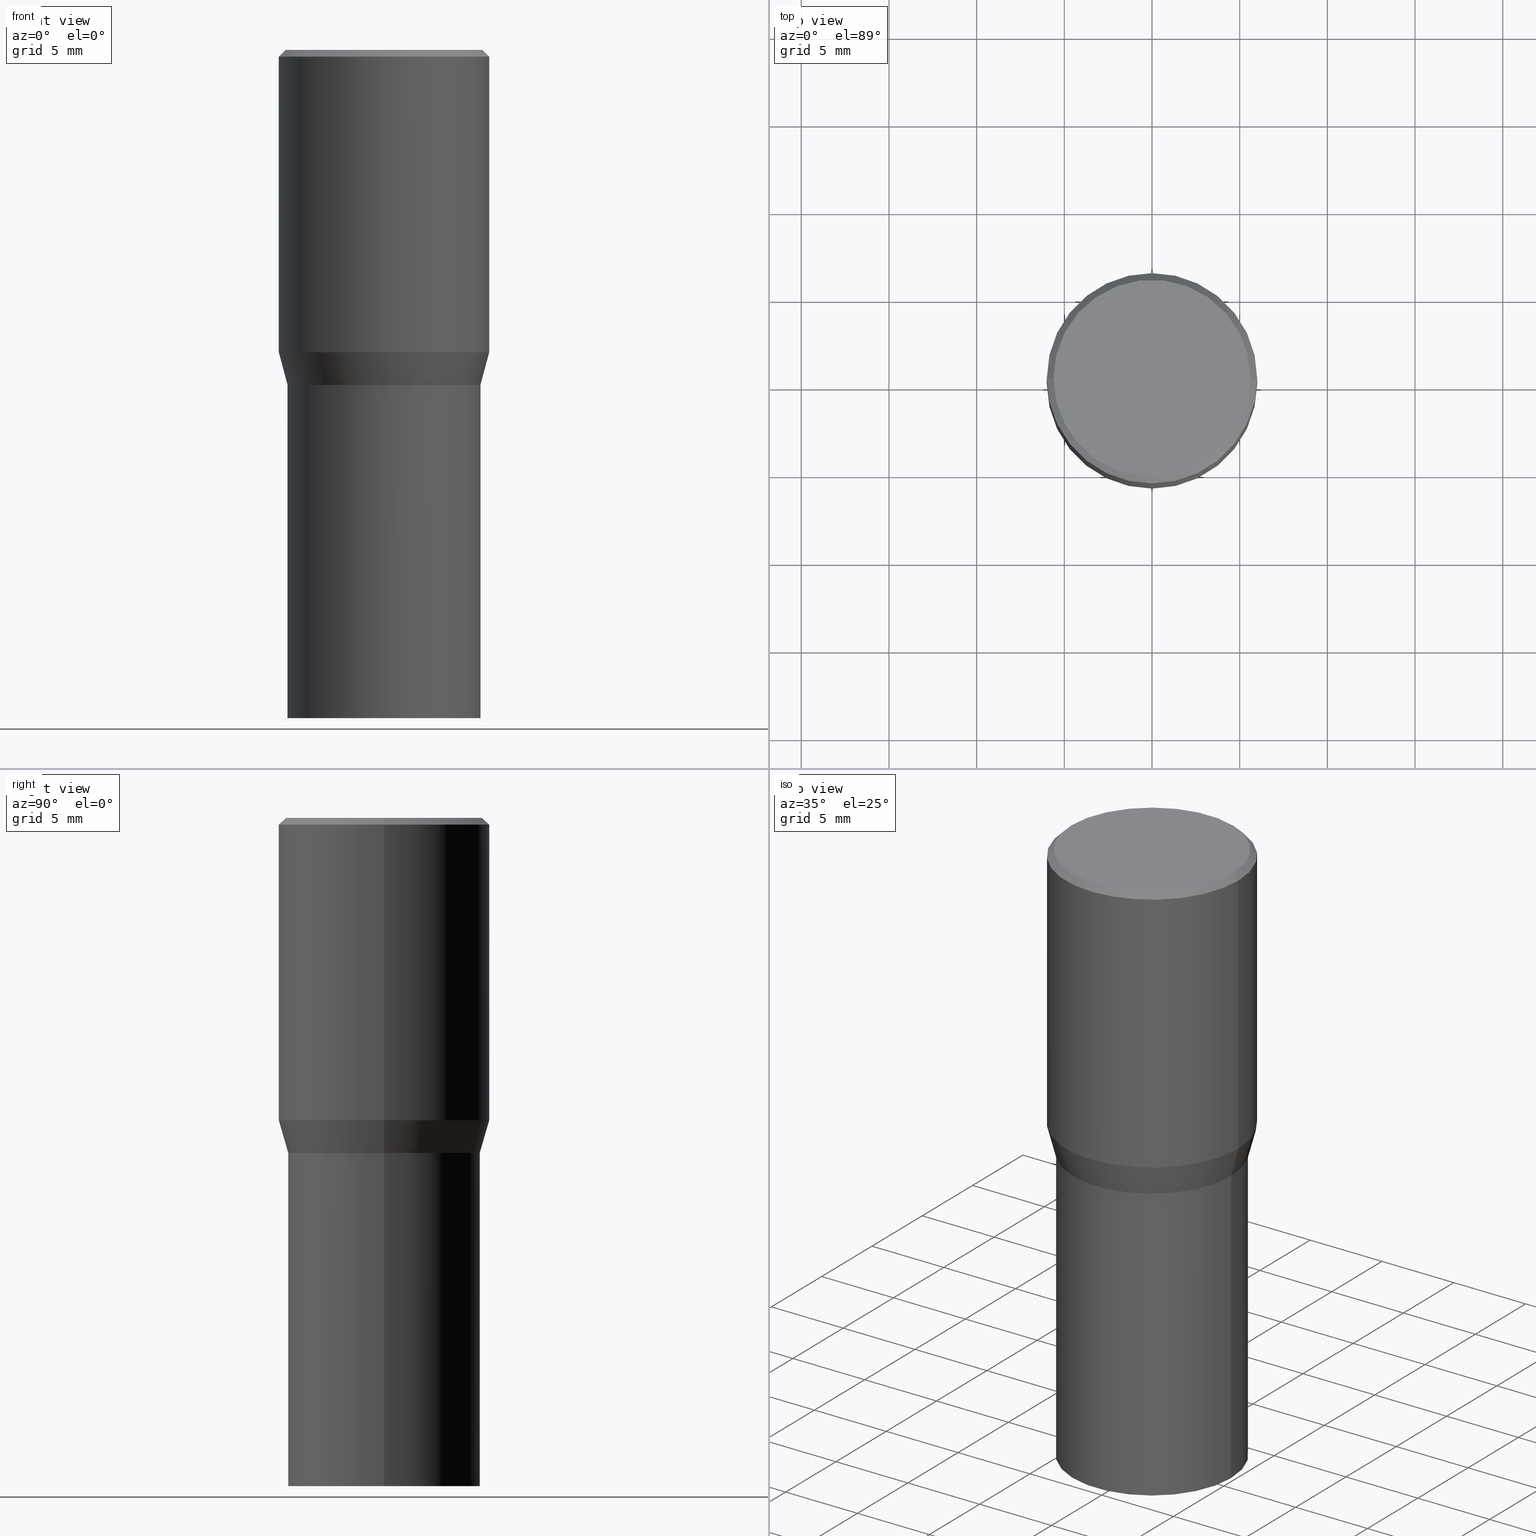
[diagram: canonical four-view strip — front | top / right | iso, engineering-drawing reading convention]
A machine part, canonical four-view strip (front | top / right | iso — engineering-drawing reading convention). The complete STEP part file that produces these views, byte-faithful:
ISO-10303-21;
HEADER;
FILE_DESCRIPTION (( 'STEP AP203' ),
    '1' );
FILE_NAME ('41661.STEP',
    '2024-03-12T19:16:22',
    ( '' ),
    ( '' ),
    'SwSTEP 2.0',
    'SolidWorks 2023',
    '' );
FILE_SCHEMA (( 'CONFIG_CONTROL_DESIGN' ));
ENDSEC;

DATA;
#1 = CARTESIAN_POINT ( 'NONE',  ( 0.2165500000000000203, -6.749382576117678999E-15, -1.500000000000000222 ) ) ;
#2 = CARTESIAN_POINT ( 'NONE',  ( -0.2165500000000001035, 1.538680294288497688E-15, -1.065195393794700483E-29 ) ) ;
#3 = FACE_OUTER_BOUND ( 'NONE', #418, .T. ) ;
#4 = ORIENTED_EDGE ( 'NONE', *, *, #46, .F. ) ;
#5 = CARTESIAN_POINT ( 'NONE',  ( -1.149724336312568549E-45, 1.641501643732376111E-31, 4.701447564592355584E-17 ) ) ;
#6 = EDGE_CURVE ( 'NONE', #255, #318, #280, .T. ) ;
#7 = EDGE_CURVE ( 'NONE', #178, #384, #277, .T. ) ;
#8 = CARTESIAN_POINT ( 'NONE',  ( 0.2361999999999999933, -1.649375784469496131E-15, 1.151752954443000088E-29 ) ) ;
#9 = DIRECTION ( 'NONE',  ( -2.445468806185136877E-29, 3.491481338843145188E-15, 1.000000000000000000 ) ) ;
#10 = CARTESIAN_POINT ( 'NONE',  ( -0.2361999999999999933, -6.912449449524502887E-16, -0.6786652016312719748 ) ) ;
#11 = LINE ( 'NONE', #214, #32 ) ;
#12 = CARTESIAN_POINT ( 'NONE',  ( -0.2165500000000000203, -2.392727693248884740E-15, -1.500000000000000222 ) ) ;
#13 = DIRECTION ( 'NONE',  ( 1.000000000000000000, -6.982962677686267499E-15, 4.877828720335458505E-29 ) ) ;
#14 = EDGE_CURVE ( 'NONE', #27, #114, #110, .T. ) ;
#15 = DIRECTION ( 'NONE',  ( -2.445468806185136597E-29, 3.491481338843145583E-15, 1.000000000000000000 ) ) ;
#16 = CONICAL_SURFACE ( 'NONE', #372, 0.2165500000000000203, 0.2617993877991505736 ) ;
#17 = CARTESIAN_POINT ( 'NONE',  ( -0.2160500000000000198, -1.087817159026237112E-15, -0.7519999999999998908 ) ) ;
#18 = DIRECTION ( 'NONE',  ( -0.7071067811865459074, 2.468850131082239706E-15, -0.7071067811865492381 ) ) ;
#19 = CC_DESIGN_DATE_AND_TIME_ASSIGNMENT ( #168, #205, ( #352 ) ) ;
#20 = LENGTH_MEASURE_WITH_UNIT ( LENGTH_MEASURE( 0.02539999999999999897 ), #182 );
#21 = AXIS2_PLACEMENT_3D ( 'NONE', #202, #49, #395 ) ;
#22 = CALENDAR_DATE ( 2024, 12, 3 ) ;
#23 = EDGE_LOOP ( 'NONE', ( #97, #36, #346, #224 ) ) ;
#24 = EDGE_CURVE ( 'NONE', #27, #309, #285, .T. ) ;
#25 = CIRCLE ( 'NONE', #200, 0.2361999999999999933 ) ;
#26 = DIRECTION ( 'NONE',  ( 1.000000000000000000, -6.982962677686266711E-15, 0.000000000000000000 ) ) ;
#27 = VERTEX_POINT ( 'NONE', #150 ) ;
#28 = EDGE_CURVE ( 'NONE', #34, #316, #172, .T. ) ;
#29 = LINE ( 'NONE', #8, #453 ) ;
#30 = EDGE_CURVE ( 'NONE', #252, #316, #72, .T. ) ;
#31 = ORIENTED_EDGE ( 'NONE', *, *, #327, .T. ) ;
#32 = VECTOR ( 'NONE', #143, 39.37007874015748143 ) ;
#33 = DIRECTION ( 'NONE',  ( -2.445468806185136597E-29, 3.491481338843145583E-15, 1.000000000000000000 ) ) ;
#34 = VERTEX_POINT ( 'NONE', #349 ) ;
#35 = CARTESIAN_POINT ( 'NONE',  ( 0.2361999999999999933, -1.701748004552143407E-15, -0.01499999999999999944 ) ) ;
#36 = ORIENTED_EDGE ( 'NONE', *, *, #432, .T. ) ;
#37 = ADVANCED_FACE ( 'NONE', ( #282 ), #90, .T. ) ;
#38 = LINE ( 'NONE', #256, #333 ) ;
#39 = ORIENTED_EDGE ( 'NONE', *, *, #75, .F. ) ;
#40 = DIRECTION ( 'NONE',  ( -2.445468806185136597E-29, 3.491481338843145583E-15, 1.000000000000000000 ) ) ;
#41 = VECTOR ( 'NONE', #462, 39.37007874015748143 ) ;
#42 = AXIS2_PLACEMENT_3D ( 'NONE', #77, #65, #153 ) ;
#43 = CARTESIAN_POINT ( 'NONE',  ( 1.838992542251222813E-29, -2.625593966810045497E-15, -0.7520000000000001128 ) ) ;
#44 = CARTESIAN_POINT ( 'NONE',  ( 1.838992542251222532E-29, -2.625593966810045103E-15, -0.7519999999999998908 ) ) ;
#45 = COORDINATED_UNIVERSAL_TIME_OFFSET ( 5, 0, .BEHIND. ) ;
#46 = EDGE_CURVE ( 'NONE', #27, #255, #98, .T. ) ;
#47 = CALENDAR_DATE ( 2024, 12, 3 ) ;
#48 = DIRECTION ( 'NONE',  ( 1.000000000000000000, -6.982962677686266711E-15, 0.000000000000000000 ) ) ;
#49 = DIRECTION ( 'NONE',  ( -2.445468806185136597E-29, 3.491481338843145583E-15, 1.000000000000000000 ) ) ;
#50 = COORDINATED_UNIVERSAL_TIME_OFFSET ( 5, 0, .BEHIND. ) ;
#51 = DIRECTION ( 'NONE',  ( -1.000000000000000000, 6.982962677686265922E-15, -4.876176775795935793E-29 ) ) ;
#52 = CC_DESIGN_PERSON_AND_ORGANIZATION_ASSIGNMENT ( #115, #464, ( #271 ) ) ;
#53 = VECTOR ( 'NONE', #57, 39.37007874015748143 ) ;
#54 = LOCAL_TIME ( 15, 16, 22.00000000000000000, #45 ) ;
#55 = APPLICATION_PROTOCOL_DEFINITION ( 'international standard', 'config_control_design', 1994, #91 ) ;
#56 = APPROVAL_DATE_TIME ( #378, #339 ) ;
#57 = DIRECTION ( 'NONE',  ( -0.7071067811867647324, 7.493145998871139866E-15, 0.7071067811863303021 ) ) ;
#58 = EDGE_CURVE ( 'NONE', #255, #27, #270, .T. ) ;
#59 = ADVANCED_FACE ( 'NONE', ( #359 ), #236, .T. ) ;
#60 = AXIS2_PLACEMENT_3D ( 'NONE', #423, #109, #389 ) ;
#61 = LINE ( 'NONE', #421, #53 ) ;
#62 = APPROVAL_DATE_TIME ( #140, #301 ) ;
#63 = APPROVAL_DATE_TIME ( #415, #324 ) ;
#64 = ORIENTED_EDGE ( 'NONE', *, *, #6, .T. ) ;
#65 = DIRECTION ( 'NONE',  ( 2.445468806185136597E-29, -3.491481338843145583E-15, -1.000000000000000000 ) ) ;
#66 = CARTESIAN_POINT ( 'NONE',  ( 0.000000000000000000, 0.000000000000000000, 0.000000000000000000 ) ) ;
#67 = EDGE_CURVE ( 'NONE', #180, #34, #11, .T. ) ;
#68 = ORIENTED_EDGE ( 'NONE', *, *, #99, .T. ) ;
#69 = PERSON_AND_ORGANIZATION ( #317, #308 ) ;
#70 = FACE_OUTER_BOUND ( 'NONE', #225, .T. ) ;
#71 = DIRECTION ( 'NONE',  ( -2.445468806185136597E-29, 3.491481338843145583E-15, 1.000000000000000000 ) ) ;
#72 = LINE ( 'NONE', #323, #41 ) ;
#73 = CARTESIAN_POINT ( 'NONE',  ( 0.2165500000000001035, -1.512160567852961809E-15, 1.055936080798610456E-29 ) ) ;
#74 = AXIS2_PLACEMENT_3D ( 'NONE', #407, #96, #141 ) ;
#75 = EDGE_CURVE ( 'NONE', #384, #114, #350, .T. ) ;
#76 = ORIENTED_EDGE ( 'NONE', *, *, #370, .F. ) ;
#77 = CARTESIAN_POINT ( 'NONE',  ( 3.668203209277705088E-31, -5.237222008264718399E-17, -0.01499999999999999944 ) ) ;
#78 = DIRECTION ( 'NONE',  ( -2.445468806185136597E-29, 3.491481338843145583E-15, 1.000000000000000000 ) ) ;
#79 = ORIENTED_EDGE ( 'NONE', *, *, #441, .F. ) ;
#80 = DIRECTION ( 'NONE',  ( 1.000000000000000000, -6.982962677686265922E-15, 4.876176775795935793E-29 ) ) ;
#81 = DIRECTION ( 'NONE',  ( -2.445468806185136597E-29, 3.491481338843145583E-15, 1.000000000000000000 ) ) ;
#82 = CIRCLE ( 'NONE', #322, 0.2361999999999999933 ) ;
#83 = LOCAL_TIME ( 15, 16, 22.00000000000000000, #268 ) ;
#84 = CARTESIAN_POINT ( 'NONE',  ( 1.838992542251222532E-29, -2.625593966810045103E-15, -0.7519999999999998908 ) ) ;
#85 = DIRECTION ( 'NONE',  ( 1.000000000000000000, -6.982962677686266711E-15, 0.000000000000000000 ) ) ;
#86 = DIRECTION ( 'NONE',  ( -2.445468806185136597E-29, 3.491481338843145583E-15, 1.000000000000000000 ) ) ;
#87 = CARTESIAN_POINT ( 'NONE',  ( -0.2165500000000000203, 1.538680294288497096E-15, -1.065195393794699923E-29 ) ) ;
#88 = DIRECTION ( 'NONE',  ( -2.445468806185136597E-29, 3.491481338843145583E-15, 1.000000000000000000 ) ) ;
#89 = CARTESIAN_POINT ( 'NONE',  ( -0.2361999999999999933, 1.597003564386848854E-15, -0.01499999999999999944 ) ) ;
#90 = CONICAL_SURFACE ( 'NONE', #286, 0.2165500000000000203, 0.2617993877991505736 ) ;
#91 = APPLICATION_CONTEXT ( 'configuration controlled 3d designs of mechanical parts and assemblies' ) ;
#92 = ADVANCED_FACE ( 'NONE', ( #122 ), #302, .T. ) ;
#93 = ADVANCED_FACE ( 'NONE', ( #136 ), #445, .T. ) ;
#94 = DIRECTION ( 'NONE',  ( 0.000000000000000000, 0.000000000000000000, 1.000000000000000000 ) ) ;
#95 = FACE_OUTER_BOUND ( 'NONE', #311, .T. ) ;
#96 = DIRECTION ( 'NONE',  ( -2.445468806185136597E-29, 3.491481338843145583E-15, 1.000000000000000000 ) ) ;
#97 = ORIENTED_EDGE ( 'NONE', *, *, #273, .F. ) ;
#98 = CIRCLE ( 'NONE', #227, 0.2165500000000000203 ) ;
#99 = EDGE_CURVE ( 'NONE', #412, #274, #278, .T. ) ;
#100 = ORIENTED_EDGE ( 'NONE', *, *, #24, .F. ) ;
#101 = UNCERTAINTY_MEASURE_WITH_UNIT (LENGTH_MEASURE( 1.000000000000000082E-05 ), #448, 'distance_accuracy_value', 'NONE');
#102 = DIRECTION ( 'NONE',  ( 1.000000000000000000, -6.982962677686266711E-15, 0.000000000000000000 ) ) ;
#103 = EDGE_LOOP ( 'NONE', ( #68, #249, #142, #351 ) ) ;
#104 = CALENDAR_DATE ( 2024, 12, 3 ) ;
#105 = AXIS2_PLACEMENT_3D ( 'NONE', #400, #338, #230 ) ;
#106 = ORIENTED_EDGE ( 'NONE', *, *, #379, .T. ) ;
#107 = AXIS2_PLACEMENT_3D ( 'NONE', #43, #297, #166 ) ;
#108 = DIRECTION ( 'NONE',  ( -2.445468806185136597E-29, 3.491481338843145583E-15, 1.000000000000000000 ) ) ;
#109 = DIRECTION ( 'NONE',  ( -2.445468806185136597E-29, 3.491481338843145583E-15, 1.000000000000000000 ) ) ;
#110 = LINE ( 'NONE', #73, #429 ) ;
#111 = DIRECTION ( 'NONE',  ( 1.000000000000000000, -6.982962677686266711E-15, 4.876176775795935793E-29 ) ) ;
#112 = ORIENTED_EDGE ( 'NONE', *, *, #310, .F. ) ;
#113 = CIRCLE ( 'NONE', #119, 0.2165500000000002145 ) ;
#114 = VERTEX_POINT ( 'NONE', #226 ) ;
#115 = PERSON_AND_ORGANIZATION ( #317, #308 ) ;
#116 = SECURITY_CLASSIFICATION_LEVEL ( 'unclassified' ) ;
#117 = CARTESIAN_POINT ( 'NONE',  ( 1.837769807848130011E-29, -2.623848226140623599E-15, -0.7515000000000000568 ) ) ;
#118 = FACE_OUTER_BOUND ( 'NONE', #137, .T. ) ;
#119 = AXIS2_PLACEMENT_3D ( 'NONE', #366, #15, #232 ) ;
#120 = DIRECTION ( 'NONE',  ( -2.445468806185136597E-29, 3.491481338843145583E-15, 1.000000000000000000 ) ) ;
#121 = PLANE ( 'NONE',  #194 ) ;
#122 = FACE_OUTER_BOUND ( 'NONE', #23, .T. ) ;
#123 = EDGE_CURVE ( 'NONE', #180, #309, #25, .T. ) ;
#124 = DIRECTION ( 'NONE',  ( -2.445468806185136597E-29, 3.491481338843145583E-15, 1.000000000000000000 ) ) ;
#125 = FACE_OUTER_BOUND ( 'NONE', #422, .T. ) ;
#126 = CALENDAR_DATE ( 2024, 12, 3 ) ;
#127 = CLOSED_SHELL ( 'NONE', ( #437, #281, #138, #337, #37, #264, #233, #59, #231, #240, #188, #355 ) ) ;
#128 = CIRCLE ( 'NONE', #410, 0.2212000000000000077 ) ;
#129 = CC_DESIGN_APPROVAL ( #301, ( #352 ) ) ;
#130 = VERTEX_POINT ( 'NONE', #436 ) ;
#131 = PRODUCT_DEFINITION_SHAPE ( 'NONE', 'NONE',  #352 ) ;
#132 = CARTESIAN_POINT ( 'NONE',  ( -0.2165500000000000203, -2.392727693248884740E-15, -0.7520000000000001128 ) ) ;
#133 = AXIS2_PLACEMENT_3D ( 'NONE', #300, #88, #258 ) ;
#134 = APPROVAL_PERSON_ORGANIZATION ( #187, #324, #203 ) ;
#135 = ORIENTED_EDGE ( 'NONE', *, *, #7, .T. ) ;
#136 = FACE_OUTER_BOUND ( 'NONE', #103, .T. ) ;
#137 = EDGE_LOOP ( 'NONE', ( #408, #213, #170, #39 ) ) ;
#138 = ADVANCED_FACE ( 'NONE', ( #303 ), #461, .T. ) ;
#139 = ORIENTED_EDGE ( 'NONE', *, *, #447, .T. ) ;
#140 = DATE_AND_TIME ( #126, #212 ) ;
#141 = DIRECTION ( 'NONE',  ( 1.000000000000000000, -6.982962677686266711E-15, 4.876176775795935793E-29 ) ) ;
#142 = ORIENTED_EDGE ( 'NONE', *, *, #327, .F. ) ;
#143 = DIRECTION ( 'NONE',  ( -2.445468806185136877E-29, 3.491481338843145188E-15, 1.000000000000000000 ) ) ;
#144 = DIRECTION ( 'NONE',  ( 1.000000000000000000, -6.982962677686266711E-15, 0.000000000000000000 ) ) ;
#145 = PERSON_AND_ORGANIZATION_ROLE ( 'classification_officer' ) ;
#146 = DIRECTION ( 'NONE',  ( -2.445468806185136597E-29, 3.491481338843145583E-15, 1.000000000000000000 ) ) ;
#147 = CYLINDRICAL_SURFACE ( 'NONE', #380, 0.2165500000000001035 ) ;
#148 = CARTESIAN_POINT ( 'NONE',  ( 1.838992542251222532E-29, -2.625593966810045103E-15, -0.7519999999999998908 ) ) ;
#149 = CARTESIAN_POINT ( 'NONE',  ( 3.576687321579069994E-29, -5.368277968210015545E-15, -1.500000000000000222 ) ) ;
#150 = CARTESIAN_POINT ( 'NONE',  ( 0.2165500000000000203, -4.137754534663007109E-15, -0.7520000000000001128 ) ) ;
#151 = ORIENTED_EDGE ( 'NONE', *, *, #58, .T. ) ;
#152 = CONICAL_SURFACE ( 'NONE', #174, 0.2160500000000000198, 0.7853981633977554777 ) ;
#153 = DIRECTION ( 'NONE',  ( -1.000000000000000000, 6.982962677686266711E-15, 0.000000000000000000 ) ) ;
#154 = DIRECTION ( 'NONE',  ( -2.445468806185136597E-29, 3.491481338843145583E-15, 1.000000000000000000 ) ) ;
#155 = APPROVAL_PERSON_ORGANIZATION ( #208, #301, #245 ) ;
#156 = CARTESIAN_POINT ( 'NONE',  ( 0.2165500000000000203, -4.137754534663007109E-15, -0.7520000000000001128 ) ) ;
#157 = DIRECTION ( 'NONE',  ( 2.438088387897960049E-29, -3.491481338843145188E-15, -1.000000000000000000 ) ) ;
#158 = CARTESIAN_POINT ( 'NONE',  ( 1.659654580432621677E-29, -2.369546886817807077E-15, -0.6786652016312719748 ) ) ;
#159 = DIRECTION ( 'NONE',  ( 0.2588190451025218497, 1.565188264969618221E-15, 0.9659258262890679791 ) ) ;
#160 = CARTESIAN_POINT ( 'NONE',  ( -0.2165500000000000203, -1.086913672521548598E-15, -0.7520000000000001128 ) ) ;
#161 = CARTESIAN_POINT ( 'NONE',  ( 3.668203209277705088E-31, -5.237222008264718399E-17, -0.01499999999999999944 ) ) ;
#162 = CARTESIAN_POINT ( 'NONE',  ( 0.000000000000000000, 0.000000000000000000, 0.000000000000000000 ) ) ;
#163 = FACE_OUTER_BOUND ( 'NONE', #192, .T. ) ;
#164 = DIRECTION ( 'NONE',  ( -2.445468806185136597E-29, 3.491481338843145583E-15, 1.000000000000000000 ) ) ;
#165 = AXIS2_PLACEMENT_3D ( 'NONE', #149, #364, #332 ) ;
#166 = DIRECTION ( 'NONE',  ( 1.000000000000000000, -6.982962677686266711E-15, 0.000000000000000000 ) ) ;
#167 = EDGE_CURVE ( 'NONE', #318, #114, #113, .T. ) ;
#168 = DATE_AND_TIME ( #22, #287 ) ;
#169 = CC_DESIGN_DATE_AND_TIME_ASSIGNMENT ( #284, #358, ( #430 ) ) ;
#170 = ORIENTED_EDGE ( 'NONE', *, *, #199, .F. ) ;
#171 = CARTESIAN_POINT ( 'NONE',  ( -1.149724336312568549E-45, 1.641501643732376111E-31, 4.701447564592355584E-17 ) ) ;
#172 = CIRCLE ( 'NONE', #242, 0.2361999999999999933 ) ;
#173 = AXIS2_PLACEMENT_3D ( 'NONE', #148, #108, #144 ) ;
#174 = AXIS2_PLACEMENT_3D ( 'NONE', #44, #40, #398 ) ;
#175 = ORIENTED_EDGE ( 'NONE', *, *, #6, .F. ) ;
#176 = APPROVAL_ROLE ( '' ) ;
#177 = EDGE_LOOP ( 'NONE', ( #406, #283 ) ) ;
#178 = VERTEX_POINT ( 'NONE', #17 ) ;
#179 =( NAMED_UNIT ( * ) PLANE_ANGLE_UNIT ( ) SI_UNIT ( $, .RADIAN. ) );
#180 = VERTEX_POINT ( 'NONE', #10 ) ;
#181 = DIRECTION ( 'NONE',  ( -2.445468806185136877E-29, 3.491481338843145188E-15, 1.000000000000000000 ) ) ;
#182 =( LENGTH_UNIT ( ) NAMED_UNIT ( * ) SI_UNIT ( $, .METRE. ) );
#183 = DIRECTION ( 'NONE',  ( 1.000000000000000000, -6.982962677686266711E-15, 0.000000000000000000 ) ) ;
#184 = AXIS2_PLACEMENT_3D ( 'NONE', #247, #276, #363 ) ;
#185 = DIRECTION ( 'NONE',  ( -2.445468806185136877E-29, 3.491481338843145188E-15, 1.000000000000000000 ) ) ;
#186 = EDGE_LOOP ( 'NONE', ( #456, #151, #365, #452 ) ) ;
#187 = PERSON_AND_ORGANIZATION ( #317, #308 ) ;
#188 = ADVANCED_FACE ( 'NONE', ( #163 ), #152, .T. ) ;
#189 = CARTESIAN_POINT ( 'NONE',  ( -0.2165500000000002145, -1.085167931852125319E-15, -0.7515000000000000568 ) ) ;
#190 = ORIENTED_EDGE ( 'NONE', *, *, #425, .T. ) ;
#191 = CARTESIAN_POINT ( 'NONE',  ( 0.2361999999999999933, -4.018922671287303208E-15, -0.6786652016312719748 ) ) ;
#192 = EDGE_LOOP ( 'NONE', ( #320, #135, #392, #373 ) ) ;
#193 = CARTESIAN_POINT ( 'NONE',  ( -0.2165500000000000203, -8.890793087369993447E-16, -0.7520000000000001128 ) ) ;
#194 = AXIS2_PLACEMENT_3D ( 'NONE', #305, #401, #51 ) ;
#195 = LINE ( 'NONE', #160, #207 ) ;
#196 = DIRECTION ( 'NONE',  ( 1.000000000000000000, -6.982962677686266711E-15, 0.000000000000000000 ) ) ;
#197 = CARTESIAN_POINT ( 'NONE',  ( 0.2160500000000000198, -4.134263053324163313E-15, -0.7519999999999998908 ) ) ;
#198 = DIRECTION ( 'NONE',  ( -1.000000000000000000, 6.982962677686265922E-15, -4.876176775795935793E-29 ) ) ;
#199 = EDGE_CURVE ( 'NONE', #114, #318, #367, .T. ) ;
#200 = AXIS2_PLACEMENT_3D ( 'NONE', #158, #164, #48 ) ;
#201 = DIRECTION ( 'NONE',  ( 1.000000000000000000, -6.982962677686266711E-15, 0.000000000000000000 ) ) ;
#202 = CARTESIAN_POINT ( 'NONE',  ( 3.668203209277704895E-29, -5.237222008264718177E-15, -1.500000000000000222 ) ) ;
#203 = APPROVAL_ROLE ( '' ) ;
#204 = DIRECTION ( 'NONE',  ( 1.000000000000000000, 0.000000000000000000, 0.000000000000000000 ) ) ;
#205 = DATE_TIME_ROLE ( 'creation_date' ) ;
#206 = LINE ( 'NONE', #89, #444 ) ;
#207 = VECTOR ( 'NONE', #294, 39.37007874015748143 ) ;
#208 = PERSON_AND_ORGANIZATION ( #317, #308 ) ;
#209 = APPROVAL_STATUS ( 'not_yet_approved' ) ;
#210 = CARTESIAN_POINT ( 'NONE',  ( 0.2165500000000000203, -4.137754534663007109E-15, -0.7520000000000001128 ) ) ;
#211 = AXIS2_PLACEMENT_3D ( 'NONE', #442, #157, #198 ) ;
#212 = LOCAL_TIME ( 15, 16, 22.00000000000000000, #262 ) ;
#213 = ORIENTED_EDGE ( 'NONE', *, *, #413, .T. ) ;
#214 = CARTESIAN_POINT ( 'NONE',  ( -0.2361999999999999933, 1.678301941865356591E-15, -1.161852468318208757E-29 ) ) ;
#215 = DIRECTION ( 'NONE',  ( 1.000000000000000000, -6.982962677686266711E-15, 4.876176775795935793E-29 ) ) ;
#216 = APPLICATION_PROTOCOL_DEFINITION ( 'international standard', 'config_control_design', 1994, #438 ) ;
#217 = EDGE_LOOP ( 'NONE', ( #449, #64, #266, #334 ) ) ;
#218 = CARTESIAN_POINT ( 'NONE',  ( 0.000000000000000000, 0.000000000000000000, 0.000000000000000000 ) ) ;
#219 = CARTESIAN_POINT ( 'NONE',  ( 1.838992542251222813E-29, -2.625593966810045497E-15, -0.7520000000000001128 ) ) ;
#220 = VECTOR ( 'NONE', #435, 39.37007874015748143 ) ;
#221 = DIRECTION ( 'NONE',  ( -2.445468806185136877E-29, 3.491481338843145188E-15, 1.000000000000000000 ) ) ;
#222 = DIRECTION ( 'NONE',  ( -2.445468806185136597E-29, 3.491481338843145583E-15, 1.000000000000000000 ) ) ;
#223 = PRODUCT_RELATED_PRODUCT_CATEGORY ( 'detail', '', ( #343 ) ) ;
#224 = ORIENTED_EDGE ( 'NONE', *, *, #447, .F. ) ;
#225 = EDGE_LOOP ( 'NONE', ( #31, #139 ) ) ;
#226 = CARTESIAN_POINT ( 'NONE',  ( 0.2165500000000002145, -4.136008793993586394E-15, -0.7515000000000000568 ) ) ;
#227 = AXIS2_PLACEMENT_3D ( 'NONE', #466, #427, #328 ) ;
#228 = AXIS2_PLACEMENT_3D ( 'NONE', #387, #71, #85 ) ;
#229 = FACE_OUTER_BOUND ( 'NONE', #450, .T. ) ;
#230 = DIRECTION ( 'NONE',  ( -1.000000000000000000, 6.982962677686266711E-15, 0.000000000000000000 ) ) ;
#231 = ADVANCED_FACE ( 'NONE', ( #341 ), #336, .F. ) ;
#232 = DIRECTION ( 'NONE',  ( 1.000000000000000000, -6.982962677686266711E-15, 0.000000000000000000 ) ) ;
#233 = ADVANCED_FACE ( 'NONE', ( #292 ), #433, .T. ) ;
#234 = CARTESIAN_POINT ( 'NONE',  ( 1.838992542251222813E-29, -2.625593966810045497E-15, -0.7520000000000001128 ) ) ;
#235 = AXIS2_PLACEMENT_3D ( 'NONE', #465, #222, #360 ) ;
#236 = CONICAL_SURFACE ( 'NONE', #42, 0.2361999999999999933, 0.7853981633974459475 ) ;
#237 =( GEOMETRIC_REPRESENTATION_CONTEXT ( 3 ) GLOBAL_UNCERTAINTY_ASSIGNED_CONTEXT ( ( #101 ) ) GLOBAL_UNIT_ASSIGNED_CONTEXT ( ( #448, #179, #319 ) ) REPRESENTATION_CONTEXT ( 'NONE', 'WORKASPACE' ) );
#238 = VECTOR ( 'NONE', #369, 39.37007874015748143 ) ;
#239 = AXIS2_PLACEMENT_3D ( 'NONE', #66, #146, #215 ) ;
#240 = ADVANCED_FACE ( 'NONE', ( #125 ), #261, .F. ) ;
#241 = ORIENTED_EDGE ( 'NONE', *, *, #409, .F. ) ;
#242 = AXIS2_PLACEMENT_3D ( 'NONE', #290, #124, #183 ) ;
#243 = DIMENSIONAL_EXPONENTS ( 1.000000000000000000, 0.000000000000000000, 0.000000000000000000, 0.000000000000000000, 0.000000000000000000, 0.000000000000000000, 0.000000000000000000 ) ;
#244 = AXIS2_PLACEMENT_3D ( 'NONE', #162, #299, #376 ) ;
#245 = APPROVAL_ROLE ( '' ) ;
#246 = ORIENTED_EDGE ( 'NONE', *, *, #14, .T. ) ;
#247 = CARTESIAN_POINT ( 'NONE',  ( 3.668203209277704895E-29, -5.237222008264718177E-15, -1.500000000000000222 ) ) ;
#248 = MECHANICAL_CONTEXT ( 'NONE', #438, 'mechanical' ) ;
#249 = ORIENTED_EDGE ( 'NONE', *, *, #273, .T. ) ;
#250 = CARTESIAN_POINT ( 'NONE',  ( 0.2160500000000000198, -4.134263053324163313E-15, -0.7519999999999998908 ) ) ;
#251 = EDGE_CURVE ( 'NONE', #316, #34, #344, .T. ) ;
#252 = VERTEX_POINT ( 'NONE', #394 ) ;
#253 = VECTOR ( 'NONE', #185, 39.37007874015748143 ) ;
#254 = CIRCLE ( 'NONE', #60, 0.2165500000000000203 ) ;
#255 = VERTEX_POINT ( 'NONE', #193 ) ;
#256 = CARTESIAN_POINT ( 'NONE',  ( 0.2165500000000000203, -1.512160567852961217E-15, 1.055936080798610036E-29 ) ) ;
#257 = ORIENTED_EDGE ( 'NONE', *, *, #28, .T. ) ;
#258 = DIRECTION ( 'NONE',  ( 1.000000000000000000, -6.982962677686266711E-15, 4.876176775795936353E-29 ) ) ;
#259 = AXIS2_PLACEMENT_3D ( 'NONE', #5, #154, #13 ) ;
#260 = DIRECTION ( 'NONE',  ( -2.438088387897960049E-29, 3.491481338843145188E-15, 1.000000000000000000 ) ) ;
#261 = PLANE ( 'NONE',  #396 ) ;
#262 = COORDINATED_UNIVERSAL_TIME_OFFSET ( 5, 0, .BEHIND. ) ;
#263 = MANIFOLD_SOLID_BREP ( 'Body-Move/Copy2[2]', #127 ) ;
#264 = ADVANCED_FACE ( 'NONE', ( #293 ), #16, .T. ) ;
#265 = PERSON_AND_ORGANIZATION_ROLE ( 'design_owner' ) ;
#266 = ORIENTED_EDGE ( 'NONE', *, *, #167, .T. ) ;
#267 = DESIGN_CONTEXT ( 'detailed design', #91, 'design' ) ;
#268 = COORDINATED_UNIVERSAL_TIME_OFFSET ( 5, 0, .BEHIND. ) ;
#269 = CARTESIAN_POINT ( 'NONE',  ( 1.659654580432621677E-29, -2.369546886817807077E-15, -0.6786652016312719748 ) ) ;
#270 = CIRCLE ( 'NONE', #420, 0.2165500000000000203 ) ;
#271 = PRODUCT_DEFINITION_FORMATION_WITH_SPECIFIED_SOURCE ( 'ANY', '', #343, .NOT_KNOWN. ) ;
#272 = ORIENTED_EDGE ( 'NONE', *, *, #7, .F. ) ;
#273 = EDGE_CURVE ( 'NONE', #274, #416, #295, .T. ) ;
#274 = VERTEX_POINT ( 'NONE', #12 ) ;
#275 = ORIENTED_EDGE ( 'NONE', *, *, #67, .F. ) ;
#276 = DIRECTION ( 'NONE',  ( -2.445468806185136597E-29, 3.491481338843145583E-15, 1.000000000000000000 ) ) ;
#277 = CIRCLE ( 'NONE', #173, 0.2160500000000000198 ) ;
#278 = CIRCLE ( 'NONE', #21, 0.2165500000000000203 ) ;
#279 = PERSON_AND_ORGANIZATION_ROLE ( 'creator' ) ;
#280 = LINE ( 'NONE', #2, #253 ) ;
#281 = ADVANCED_FACE ( 'NONE', ( #118 ), #296, .T. ) ;
#282 = FACE_OUTER_BOUND ( 'NONE', #348, .T. ) ;
#283 = ORIENTED_EDGE ( 'NONE', *, *, #362, .T. ) ;
#284 = DATE_AND_TIME ( #321, #411 ) ;
#285 = LINE ( 'NONE', #210, #306 ) ;
#286 = AXIS2_PLACEMENT_3D ( 'NONE', #219, #33, #102 ) ;
#287 = LOCAL_TIME ( 15, 16, 22.00000000000000000, #50 ) ;
#288 = ORIENTED_EDGE ( 'NONE', *, *, #28, .F. ) ;
#289 = CIRCLE ( 'NONE', #107, 0.2165500000000000203 ) ;
#290 = CARTESIAN_POINT ( 'NONE',  ( 3.668203209277705088E-31, -5.237222008264718399E-17, -0.01499999999999999944 ) ) ;
#291 = PERSON_AND_ORGANIZATION_ROLE ( 'design_supplier' ) ;
#292 = FACE_OUTER_BOUND ( 'NONE', #454, .T. ) ;
#293 = FACE_OUTER_BOUND ( 'NONE', #186, .T. ) ;
#294 = DIRECTION ( 'NONE',  ( -0.2588190451025218497, 5.211531920934553408E-15, 0.9659258262890679791 ) ) ;
#295 = LINE ( 'NONE', #87, #238 ) ;
#296 = CONICAL_SURFACE ( 'NONE', #391, 0.2160500000000000198, 0.7853981633977554777 ) ;
#297 = DIRECTION ( 'NONE',  ( -2.445468806185136597E-29, 3.491481338843145583E-15, 1.000000000000000000 ) ) ;
#298 = CC_DESIGN_PERSON_AND_ORGANIZATION_ASSIGNMENT ( #443, #265, ( #343 ) ) ;
#299 = DIRECTION ( 'NONE',  ( -2.445468806185136597E-29, 3.491481338843145583E-15, 1.000000000000000000 ) ) ;
#300 = CARTESIAN_POINT ( 'NONE',  ( 0.000000000000000000, 0.000000000000000000, 0.000000000000000000 ) ) ;
#301 = APPROVAL ( #457, 'UNSPECIFIED' ) ;
#302 = CYLINDRICAL_SURFACE ( 'NONE', #244, 0.2165500000000000203 ) ;
#303 = FACE_OUTER_BOUND ( 'NONE', #329, .T. ) ;
#304 = ADVANCED_FACE ( 'NONE', ( #95 ), #374, .F. ) ;
#305 = CARTESIAN_POINT ( 'NONE',  ( 1.512160567852979361E-15, 0.2165499999999973835, -0.7520000000000008900 ) ) ;
#306 = VECTOR ( 'NONE', #159, 39.37007874015748143 ) ;
#307 = CIRCLE ( 'NONE', #259, 0.2212000000000000077 ) ;
#308 = ORGANIZATION ( 'UNSPECIFIED', 'UNSPECIFIED', '' ) ;
#309 = VERTEX_POINT ( 'NONE', #191 ) ;
#310 = EDGE_CURVE ( 'NONE', #309, #316, #29, .T. ) ;
#311 = EDGE_LOOP ( 'NONE', ( #357, #377 ) ) ;
#312 = ORIENTED_EDGE ( 'NONE', *, *, #251, .T. ) ;
#313 = AXIS2_PLACEMENT_3D ( 'NONE', #161, #399, #196 ) ;
#314 = DIRECTION ( 'NONE',  ( -2.445468806185136597E-29, 3.491481338843145583E-15, 1.000000000000000000 ) ) ;
#315 = CIRCLE ( 'NONE', #228, 0.2160500000000000198 ) ;
#316 = VERTEX_POINT ( 'NONE', #35 ) ;
#317 = PERSON ( 'UNSPECIFIED', 'UNSPECIFIED', 'UNSPECIFIED', ('UNSPECIFIED'), ('UNSPECIFIED'), ('UNSPECIFIED') ) ;
#318 = VERTEX_POINT ( 'NONE', #189 ) ;
#319 =( NAMED_UNIT ( * ) SI_UNIT ( $, .STERADIAN. ) SOLID_ANGLE_UNIT ( ) );
#320 = ORIENTED_EDGE ( 'NONE', *, *, #413, .F. ) ;
#321 = CALENDAR_DATE ( 2024, 12, 3 ) ;
#322 = AXIS2_PLACEMENT_3D ( 'NONE', #269, #78, #460 ) ;
#323 = CARTESIAN_POINT ( 'NONE',  ( 0.2361999999999999933, -1.672821847156282947E-15, -0.01499999999999999944 ) ) ;
#324 = APPROVAL ( #402, 'UNSPECIFIED' ) ;
#325 = ORIENTED_EDGE ( 'NONE', *, *, #310, .T. ) ;
#326 = VERTEX_POINT ( 'NONE', #156 ) ;
#327 = EDGE_CURVE ( 'NONE', #326, #416, #254, .T. ) ;
#328 = DIRECTION ( 'NONE',  ( 1.000000000000000000, -6.982962677686266711E-15, 0.000000000000000000 ) ) ;
#329 = EDGE_LOOP ( 'NONE', ( #424, #431, #312, #241 ) ) ;
#330 = DIRECTION ( 'NONE',  ( 1.000000000000000000, -6.982962677686267499E-15, 4.877828720335458505E-29 ) ) ;
#331 = CYLINDRICAL_SURFACE ( 'NONE', #239, 0.2165500000000001035 ) ;
#332 = DIRECTION ( 'NONE',  ( 1.000000000000000000, -6.982962677686265922E-15, 4.876176775795935793E-29 ) ) ;
#333 = VECTOR ( 'NONE', #9, 39.37007874015748143 ) ;
#334 = ORIENTED_EDGE ( 'NONE', *, *, #14, .F. ) ;
#335 = PERSON_AND_ORGANIZATION ( #317, #308 ) ;
#336 = PLANE ( 'NONE',  #211 ) ;
#337 = ADVANCED_FACE ( 'NONE', ( #3 ), #354, .T. ) ;
#338 = DIRECTION ( 'NONE',  ( 2.445468806185136597E-29, -3.491481338843145583E-15, -1.000000000000000000 ) ) ;
#339 = APPROVAL ( #209, 'UNSPECIFIED' ) ;
#340 = AXIS2_PLACEMENT_3D ( 'NONE', #382, #94, #204 ) ;
#341 = FACE_OUTER_BOUND ( 'NONE', #177, .T. ) ;
#342 = EDGE_CURVE ( 'NONE', #412, #326, #38, .T. ) ;
#343 = PRODUCT ( '41661', '41661', '', ( #248 ) ) ;
#344 = CIRCLE ( 'NONE', #313, 0.2361999999999999933 ) ;
#345 = PERSON_AND_ORGANIZATION ( #317, #308 ) ;
#346 = ORIENTED_EDGE ( 'NONE', *, *, #342, .T. ) ;
#347 = CC_DESIGN_PERSON_AND_ORGANIZATION_ASSIGNMENT ( #335, #291, ( #271 ) ) ;
#348 = EDGE_LOOP ( 'NONE', ( #458, #106, #361, #100 ) ) ;
#349 = CARTESIAN_POINT ( 'NONE',  ( -0.2361999999999999933, 4.673423884151294145E-16, -0.01499999999999999944 ) ) ;
#350 = LINE ( 'NONE', #197, #220 ) ;
#351 = ORIENTED_EDGE ( 'NONE', *, *, #342, .F. ) ;
#352 = PRODUCT_DEFINITION ( 'UNKNOWN', '', #271, #267 ) ;
#353 = ORIENTED_EDGE ( 'NONE', *, *, #199, .T. ) ;
#354 = CYLINDRICAL_SURFACE ( 'NONE', #235, 0.2361999999999999933 ) ;
#355 = ADVANCED_FACE ( 'NONE', ( #229 ), #147, .F. ) ;
#356 = CC_DESIGN_APPROVAL ( #339, ( #271 ) ) ;
#357 = ORIENTED_EDGE ( 'NONE', *, *, #99, .F. ) ;
#358 = DATE_TIME_ROLE ( 'classification_date' ) ;
#359 = FACE_OUTER_BOUND ( 'NONE', #463, .T. ) ;
#360 = DIRECTION ( 'NONE',  ( 1.000000000000000000, -6.982962677686266711E-15, 4.876176775795936353E-29 ) ) ;
#361 = ORIENTED_EDGE ( 'NONE', *, *, #425, .F. ) ;
#362 = EDGE_CURVE ( 'NONE', #252, #130, #128, .T. ) ;
#363 = DIRECTION ( 'NONE',  ( 1.000000000000000000, -6.982962677686264344E-15, 0.000000000000000000 ) ) ;
#364 = DIRECTION ( 'NONE',  ( -2.438088387897960049E-29, 3.491481338843145188E-15, 1.000000000000000000 ) ) ;
#365 = ORIENTED_EDGE ( 'NONE', *, *, #24, .T. ) ;
#366 = CARTESIAN_POINT ( 'NONE',  ( 1.837769807848130011E-29, -2.623848226140623599E-15, -0.7515000000000000568 ) ) ;
#367 = CIRCLE ( 'NONE', #404, 0.2165500000000002145 ) ;
#368 = CC_DESIGN_SECURITY_CLASSIFICATION ( #430, ( #271 ) ) ;
#369 = DIRECTION ( 'NONE',  ( -2.445468806185136877E-29, 3.491481338843145188E-15, 1.000000000000000000 ) ) ;
#370 = EDGE_CURVE ( 'NONE', #130, #252, #307, .T. ) ;
#371 = CARTESIAN_POINT ( 'NONE',  ( 1.838992542251222813E-29, -2.625593966810045497E-15, -0.7520000000000001128 ) ) ;
#372 = AXIS2_PLACEMENT_3D ( 'NONE', #234, #81, #201 ) ;
#373 = ORIENTED_EDGE ( 'NONE', *, *, #167, .F. ) ;
#374 = PLANE ( 'NONE',  #165 ) ;
#375 = CIRCLE ( 'NONE', #184, 0.2165500000000000203 ) ;
#376 = DIRECTION ( 'NONE',  ( 1.000000000000000000, -6.982962677686266711E-15, 4.876176775795935793E-29 ) ) ;
#377 = ORIENTED_EDGE ( 'NONE', *, *, #432, .F. ) ;
#378 = DATE_AND_TIME ( #104, #83 ) ;
#379 = EDGE_CURVE ( 'NONE', #255, #180, #195, .T. ) ;
#380 = AXIS2_PLACEMENT_3D ( 'NONE', #218, #426, #111 ) ;
#381 = DIRECTION ( 'NONE',  ( -2.445468806185136597E-29, 3.491481338843145583E-15, 1.000000000000000000 ) ) ;
#382 = CARTESIAN_POINT ( 'NONE',  ( 0.000000000000000000, 0.000000000000000000, 0.000000000000000000 ) ) ;
#383 = SHAPE_DEFINITION_REPRESENTATION ( #131, #440 ) ;
#384 = VERTEX_POINT ( 'NONE', #250 ) ;
#385 = DIRECTION ( 'NONE',  ( 1.000000000000000000, -6.982962677686266711E-15, 0.000000000000000000 ) ) ;
#386 = ORIENTED_EDGE ( 'NONE', *, *, #123, .T. ) ;
#387 = CARTESIAN_POINT ( 'NONE',  ( 1.838992542251222532E-29, -2.625593966810045103E-15, -0.7519999999999998908 ) ) ;
#388 = ADVANCED_FACE ( 'NONE', ( #70 ), #121, .F. ) ;
#389 = DIRECTION ( 'NONE',  ( 1.000000000000000000, -6.982962677686266711E-15, 0.000000000000000000 ) ) ;
#390 = ORIENTED_EDGE ( 'NONE', *, *, #409, .T. ) ;
#391 = AXIS2_PLACEMENT_3D ( 'NONE', #84, #381, #26 ) ;
#392 = ORIENTED_EDGE ( 'NONE', *, *, #75, .T. ) ;
#393 = ORIENTED_EDGE ( 'NONE', *, *, #251, .F. ) ;
#394 = CARTESIAN_POINT ( 'NONE',  ( 0.2212000000000000077, -1.595182002131672613E-15, 4.701447564593453210E-17 ) ) ;
#395 = DIRECTION ( 'NONE',  ( 1.000000000000000000, -6.982962677686264344E-15, 0.000000000000000000 ) ) ;
#396 = AXIS2_PLACEMENT_3D ( 'NONE', #371, #260, #80 ) ;
#397 = CC_DESIGN_APPROVAL ( #324, ( #430 ) ) ;
#398 = DIRECTION ( 'NONE',  ( 1.000000000000000000, -6.982962677686266711E-15, 0.000000000000000000 ) ) ;
#399 = DIRECTION ( 'NONE',  ( -2.445468806185136597E-29, 3.491481338843145583E-15, 1.000000000000000000 ) ) ;
#400 = CARTESIAN_POINT ( 'NONE',  ( 3.668203209277705088E-31, -5.237222008264718399E-17, -0.01499999999999999944 ) ) ;
#401 = DIRECTION ( 'NONE',  ( 2.438088387897960049E-29, -3.491481338843145188E-15, -1.000000000000000000 ) ) ;
#402 = APPROVAL_STATUS ( 'not_yet_approved' ) ;
#403 = CC_DESIGN_PERSON_AND_ORGANIZATION_ASSIGNMENT ( #345, #279, ( #352 ) ) ;
#404 = AXIS2_PLACEMENT_3D ( 'NONE', #117, #120, #439 ) ;
#405 = APPROVAL_PERSON_ORGANIZATION ( #446, #339, #176 ) ;
#406 = ORIENTED_EDGE ( 'NONE', *, *, #370, .T. ) ;
#407 = CARTESIAN_POINT ( 'NONE',  ( 0.000000000000000000, 0.000000000000000000, 0.000000000000000000 ) ) ;
#408 = ORIENTED_EDGE ( 'NONE', *, *, #441, .T. ) ;
#409 = EDGE_CURVE ( 'NONE', #130, #34, #206, .T. ) ;
#410 = AXIS2_PLACEMENT_3D ( 'NONE', #171, #314, #330 ) ;
#411 = LOCAL_TIME ( 15, 16, 22.00000000000000000, #459 ) ;
#412 = VERTEX_POINT ( 'NONE', #1 ) ;
#413 = EDGE_CURVE ( 'NONE', #178, #318, #61, .T. ) ;
#414 = CARTESIAN_POINT ( 'NONE',  ( 1.838992542251222813E-29, -2.625593966810045497E-15, -0.7520000000000001128 ) ) ;
#415 = DATE_AND_TIME ( #47, #54 ) ;
#416 = VERTEX_POINT ( 'NONE', #132 ) ;
#417 = MANIFOLD_SOLID_BREP ( 'Body-Move/Copy2[1]', #451 ) ;
#418 = EDGE_LOOP ( 'NONE', ( #190, #455, #393, #112 ) ) ;
#419 = FACE_OUTER_BOUND ( 'NONE', #217, .T. ) ;
#420 = AXIS2_PLACEMENT_3D ( 'NONE', #414, #86, #385 ) ;
#421 = CARTESIAN_POINT ( 'NONE',  ( -0.2160500000000000198, -1.090466386200348708E-15, -0.7519999999999998908 ) ) ;
#422 = EDGE_LOOP ( 'NONE', ( #79, #272 ) ) ;
#423 = CARTESIAN_POINT ( 'NONE',  ( 1.838992542251222813E-29, -2.625593966810045497E-15, -0.7520000000000001128 ) ) ;
#424 = ORIENTED_EDGE ( 'NONE', *, *, #362, .F. ) ;
#425 = EDGE_CURVE ( 'NONE', #309, #180, #82, .T. ) ;
#426 = DIRECTION ( 'NONE',  ( -2.445468806185136597E-29, 3.491481338843145583E-15, 1.000000000000000000 ) ) ;
#427 = DIRECTION ( 'NONE',  ( -2.445468806185136597E-29, 3.491481338843145583E-15, 1.000000000000000000 ) ) ;
#428 = ORIENTED_EDGE ( 'NONE', *, *, #30, .F. ) ;
#429 = VECTOR ( 'NONE', #221, 39.37007874015748143 ) ;
#430 = SECURITY_CLASSIFICATION ( '', '', #116 ) ;
#431 = ORIENTED_EDGE ( 'NONE', *, *, #30, .T. ) ;
#432 = EDGE_CURVE ( 'NONE', #274, #412, #375, .T. ) ;
#433 = CYLINDRICAL_SURFACE ( 'NONE', #133, 0.2361999999999999933 ) ;
#434 = CC_DESIGN_PERSON_AND_ORGANIZATION_ASSIGNMENT ( #69, #145, ( #430 ) ) ;
#435 = DIRECTION ( 'NONE',  ( 0.7071067811867647324, -2.468850131084532135E-15, 0.7071067811863303021 ) ) ;
#436 = CARTESIAN_POINT ( 'NONE',  ( -0.2212000000000000077, 1.570817454345525709E-15, 4.701447564591265970E-17 ) ) ;
#437 = ADVANCED_FACE ( 'NONE', ( #419 ), #331, .F. ) ;
#438 = APPLICATION_CONTEXT ( 'configuration controlled 3d designs of mechanical parts and assemblies' ) ;
#439 = DIRECTION ( 'NONE',  ( 1.000000000000000000, -6.982962677686266711E-15, 0.000000000000000000 ) ) ;
#440 = ADVANCED_BREP_SHAPE_REPRESENTATION ( '41661', ( #417, #263, #340 ), #237 ) ;
#441 = EDGE_CURVE ( 'NONE', #384, #178, #315, .T. ) ;
#442 = CARTESIAN_POINT ( 'NONE',  ( 1.544631344304202170E-15, 0.2212000000000000077, -7.488084343291421542E-16 ) ) ;
#443 = PERSON_AND_ORGANIZATION ( #317, #308 ) ;
#444 = VECTOR ( 'NONE', #18, 39.37007874015748143 ) ;
#445 = CYLINDRICAL_SURFACE ( 'NONE', #74, 0.2165500000000000203 ) ;
#446 = PERSON_AND_ORGANIZATION ( #317, #308 ) ;
#447 = EDGE_CURVE ( 'NONE', #416, #326, #289, .T. ) ;
#448 =( CONVERSION_BASED_UNIT ( 'INCH', #20 ) LENGTH_UNIT ( ) NAMED_UNIT ( #243 ) );
#449 = ORIENTED_EDGE ( 'NONE', *, *, #58, .F. ) ;
#450 = EDGE_LOOP ( 'NONE', ( #175, #4, #246, #353 ) ) ;
#451 = CLOSED_SHELL ( 'NONE', ( #93, #304, #92, #388 ) ) ;
#452 = ORIENTED_EDGE ( 'NONE', *, *, #123, .F. ) ;
#453 = VECTOR ( 'NONE', #181, 39.37007874015748143 ) ;
#454 = EDGE_LOOP ( 'NONE', ( #275, #386, #325, #288 ) ) ;
#455 = ORIENTED_EDGE ( 'NONE', *, *, #67, .T. ) ;
#456 = ORIENTED_EDGE ( 'NONE', *, *, #379, .F. ) ;
#457 = APPROVAL_STATUS ( 'not_yet_approved' ) ;
#458 = ORIENTED_EDGE ( 'NONE', *, *, #46, .T. ) ;
#459 = COORDINATED_UNIVERSAL_TIME_OFFSET ( 5, 0, .BEHIND. ) ;
#460 = DIRECTION ( 'NONE',  ( 1.000000000000000000, -6.982962677686266711E-15, 0.000000000000000000 ) ) ;
#461 = CONICAL_SURFACE ( 'NONE', #105, 0.2361999999999999933, 0.7853981633974459475 ) ;
#462 = DIRECTION ( 'NONE',  ( 0.7071067811865459074, -7.319954787623251312E-15, -0.7071067811865492381 ) ) ;
#463 = EDGE_LOOP ( 'NONE', ( #428, #76, #390, #257 ) ) ;
#464 = PERSON_AND_ORGANIZATION_ROLE ( 'creator' ) ;
#465 = CARTESIAN_POINT ( 'NONE',  ( 0.000000000000000000, 0.000000000000000000, 0.000000000000000000 ) ) ;
#466 = CARTESIAN_POINT ( 'NONE',  ( 1.838992542251222813E-29, -2.625593966810045497E-15, -0.7520000000000001128 ) ) ;
ENDSEC;
END-ISO-10303-21;
